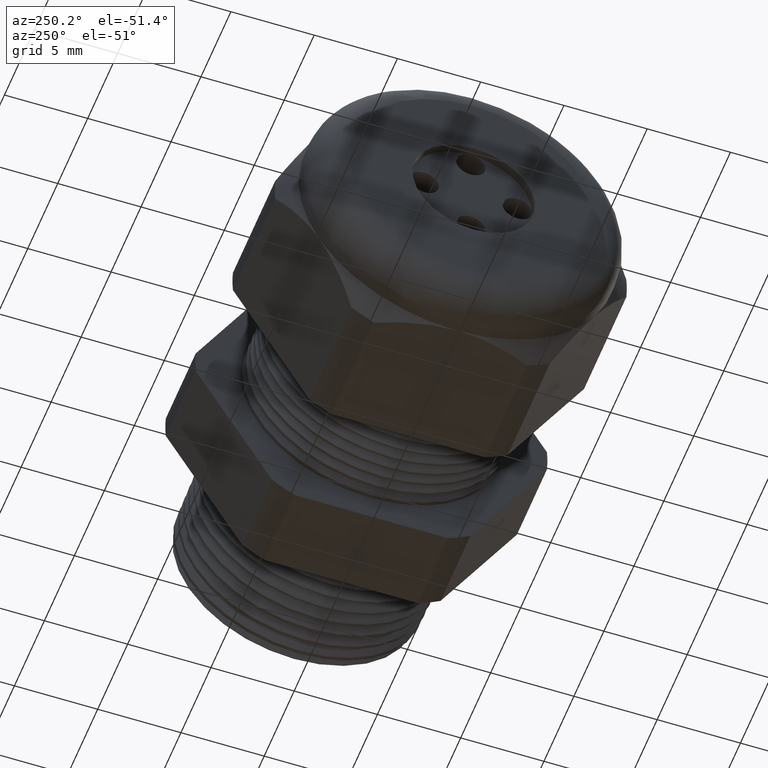
[diagram: clean part render]
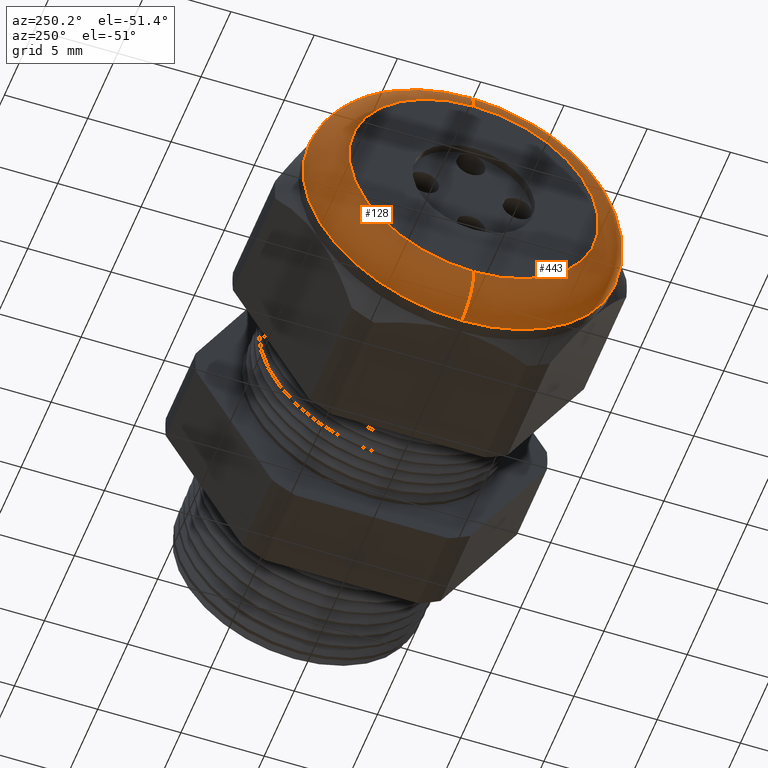
[diagram: same view with one multi-face feature highlighted, each face labeled with its STEP entity id]
A machine part, auxiliary view. The highlighted faces form ONE feature: a constant-radius fillet chain: 2 tangent blend faces with common blend radius 2.032 mm. The faces share edges in the B-rep.
Their STEP definitions:
[1] entity #128 (Torus):
#128 = ADVANCED_FACE ( 'NONE', ( #1545 ), #1543, .T. ) ;
#129 = EDGE_LOOP ( 'NONE', ( #130, #134, #137, #195 ) ) ;
#130 = ORIENTED_EDGE ( 'NONE', *, *, #131, .F. ) ;
#131 = EDGE_CURVE ( 'NONE', #132, #133, #1539, .T. ) ;
#132 = VERTEX_POINT ( 'NONE', #1534 ) ;
#133 = VERTEX_POINT ( 'NONE', #1533 ) ;
#134 = ORIENTED_EDGE ( 'NONE', *, *, #135, .T. ) ;
#135 = EDGE_CURVE ( 'NONE', #132, #136, #1532, .T. ) ;
#136 = VERTEX_POINT ( 'NONE', #1527 ) ;
#137 = ORIENTED_EDGE ( 'NONE', *, *, #138, .F. ) ;
#138 = EDGE_CURVE ( 'NONE', #139, #136, #1526, .T. ) ;
#139 = VERTEX_POINT ( 'NONE', #1521 ) ;
#195 = ORIENTED_EDGE ( 'NONE', *, *, #196, .F. ) ;
#196 = EDGE_CURVE ( 'NONE', #133, #139, #1660, .T. ) ;
#1521 = CARTESIAN_POINT ( 'NONE',  ( -1.179999999999999900, 0.0000000000000000000, 0.2950000000000001000 ) ) ;
#1522 = DIRECTION ( 'NONE',  ( 0.0000000000000000000, 0.0000000000000000000, 1.000000000000000000 ) ) ;
#1523 = DIRECTION ( 'NONE',  ( -1.000000000000000000, 0.0000000000000000000, 0.0000000000000000000 ) ) ;
#1524 = CARTESIAN_POINT ( 'NONE',  ( -1.179999999999999900, 0.0000000000000000000, 0.0000000000000000000 ) ) ;
#1525 = AXIS2_PLACEMENT_3D ( 'NONE', #1524, #1523, #1522 ) ;
#1526 = CIRCLE ( 'NONE', #1525, 0.2950000000000001000 ) ;
#1527 = CARTESIAN_POINT ( 'NONE',  ( -1.179999999999999900, 4.102566777143634000E-017, -0.2950000000000001000 ) ) ;
#1528 = DIRECTION ( 'NONE',  ( 0.0000000000000000000, -1.224646799147353500E-016, 1.000000000000000000 ) ) ;
#1529 = DIRECTION ( 'NONE',  ( 0.0000000000000000000, 1.000000000000000000, 1.224646799147353200E-016 ) ) ;
#1530 = CARTESIAN_POINT ( 'NONE',  ( -1.100000000000000100, 3.612708057484693200E-017, -0.2950000000000001000 ) ) ;
#1531 = AXIS2_PLACEMENT_3D ( 'NONE', #1530, #1529, #1528 ) ;
#1532 = CIRCLE ( 'NONE', #1531, 0.08000000000000000200 ) ;
#1533 = CARTESIAN_POINT ( 'NONE',  ( -1.100000000000000100, 4.592425496802576100E-017, 0.3750000000000001100 ) ) ;
#1534 = CARTESIAN_POINT ( 'NONE',  ( -1.100000000000000100, 0.0000000000000000000, -0.3750000000000001100 ) ) ;
#1535 = DIRECTION ( 'NONE',  ( 0.0000000000000000000, 0.0000000000000000000, 1.000000000000000000 ) ) ;
#1536 = DIRECTION ( 'NONE',  ( 1.000000000000000000, 0.0000000000000000000, 0.0000000000000000000 ) ) ;
#1537 = CARTESIAN_POINT ( 'NONE',  ( -1.100000000000000100, 0.0000000000000000000, 0.0000000000000000000 ) ) ;
#1538 = AXIS2_PLACEMENT_3D ( 'NONE', #1537, #1536, #1535 ) ;
#1539 = CIRCLE ( 'NONE', #1538, 0.3750000000000001100 ) ;
#1540 = DIRECTION ( 'NONE',  ( 0.0000000000000000000, 0.0000000000000000000, 1.000000000000000000 ) ) ;
#1541 = DIRECTION ( 'NONE',  ( -1.000000000000000000, 0.0000000000000000000, 0.0000000000000000000 ) ) ;
#1542 = AXIS2_PLACEMENT_3D ( 'NONE', #1544, #1541, #1540 ) ;
#1543 = TOROIDAL_SURFACE ( 'NONE', #1542, 0.2950000000000001000, 0.08000000000000000200 ) ;
#1544 = CARTESIAN_POINT ( 'NONE',  ( -1.100000000000000100, 0.0000000000000000000, 0.0000000000000000000 ) ) ;
#1545 = FACE_OUTER_BOUND ( 'NONE', #129, .T. ) ;
#1656 = DIRECTION ( 'NONE',  ( 0.0000000000000000000, 0.0000000000000000000, -1.000000000000000000 ) ) ;
#1657 = DIRECTION ( 'NONE',  ( 0.0000000000000000000, -1.000000000000000000, 0.0000000000000000000 ) ) ;
#1658 = CARTESIAN_POINT ( 'NONE',  ( -1.100000000000000100, 0.0000000000000000000, 0.2950000000000001000 ) ) ;
#1659 = AXIS2_PLACEMENT_3D ( 'NONE', #1658, #1657, #1656 ) ;
#1660 = CIRCLE ( 'NONE', #1659, 0.08000000000000000200 ) ;
[2] entity #443 (Torus):
#132 = VERTEX_POINT ( 'NONE', #1534 ) ;
#133 = VERTEX_POINT ( 'NONE', #1533 ) ;
#135 = EDGE_CURVE ( 'NONE', #132, #136, #1532, .T. ) ;
#136 = VERTEX_POINT ( 'NONE', #1527 ) ;
#139 = VERTEX_POINT ( 'NONE', #1521 ) ;
#196 = EDGE_CURVE ( 'NONE', #133, #139, #1660, .T. ) ;
#288 = EDGE_CURVE ( 'NONE', #136, #139, #1807, .T. ) ;
#296 = EDGE_CURVE ( 'NONE', #133, #132, #1861, .T. ) ;
#443 = ADVANCED_FACE ( 'NONE', ( #2063 ), #2062, .T. ) ;
#444 = EDGE_LOOP ( 'NONE', ( #445, #446, #447, #448 ) ) ;
#445 = ORIENTED_EDGE ( 'NONE', *, *, #135, .F. ) ;
#446 = ORIENTED_EDGE ( 'NONE', *, *, #296, .F. ) ;
#447 = ORIENTED_EDGE ( 'NONE', *, *, #196, .T. ) ;
#448 = ORIENTED_EDGE ( 'NONE', *, *, #288, .F. ) ;
#1521 = CARTESIAN_POINT ( 'NONE',  ( -1.179999999999999900, 0.0000000000000000000, 0.2950000000000001000 ) ) ;
#1527 = CARTESIAN_POINT ( 'NONE',  ( -1.179999999999999900, 4.102566777143634000E-017, -0.2950000000000001000 ) ) ;
#1528 = DIRECTION ( 'NONE',  ( 0.0000000000000000000, -1.224646799147353500E-016, 1.000000000000000000 ) ) ;
#1529 = DIRECTION ( 'NONE',  ( 0.0000000000000000000, 1.000000000000000000, 1.224646799147353200E-016 ) ) ;
#1530 = CARTESIAN_POINT ( 'NONE',  ( -1.100000000000000100, 3.612708057484693200E-017, -0.2950000000000001000 ) ) ;
#1531 = AXIS2_PLACEMENT_3D ( 'NONE', #1530, #1529, #1528 ) ;
#1532 = CIRCLE ( 'NONE', #1531, 0.08000000000000000200 ) ;
#1533 = CARTESIAN_POINT ( 'NONE',  ( -1.100000000000000100, 4.592425496802576100E-017, 0.3750000000000001100 ) ) ;
#1534 = CARTESIAN_POINT ( 'NONE',  ( -1.100000000000000100, 0.0000000000000000000, -0.3750000000000001100 ) ) ;
#1656 = DIRECTION ( 'NONE',  ( 0.0000000000000000000, 0.0000000000000000000, -1.000000000000000000 ) ) ;
#1657 = DIRECTION ( 'NONE',  ( 0.0000000000000000000, -1.000000000000000000, 0.0000000000000000000 ) ) ;
#1658 = CARTESIAN_POINT ( 'NONE',  ( -1.100000000000000100, 0.0000000000000000000, 0.2950000000000001000 ) ) ;
#1659 = AXIS2_PLACEMENT_3D ( 'NONE', #1658, #1657, #1656 ) ;
#1660 = CIRCLE ( 'NONE', #1659, 0.08000000000000000200 ) ;
#1803 = DIRECTION ( 'NONE',  ( 0.0000000000000000000, 0.0000000000000000000, 1.000000000000000000 ) ) ;
#1804 = DIRECTION ( 'NONE',  ( -1.000000000000000000, 0.0000000000000000000, 0.0000000000000000000 ) ) ;
#1805 = CARTESIAN_POINT ( 'NONE',  ( -1.179999999999999900, 0.0000000000000000000, 0.0000000000000000000 ) ) ;
#1806 = AXIS2_PLACEMENT_3D ( 'NONE', #1805, #1804, #1803 ) ;
#1807 = CIRCLE ( 'NONE', #1806, 0.2950000000000001000 ) ;
#1858 = DIRECTION ( 'NONE',  ( 0.0000000000000000000, 0.0000000000000000000, 1.000000000000000000 ) ) ;
#1859 = DIRECTION ( 'NONE',  ( 1.000000000000000000, 0.0000000000000000000, 0.0000000000000000000 ) ) ;
#1860 = AXIS2_PLACEMENT_3D ( 'NONE', #1866, #1859, #1858 ) ;
#1861 = CIRCLE ( 'NONE', #1860, 0.3750000000000001100 ) ;
#1866 = CARTESIAN_POINT ( 'NONE',  ( -1.100000000000000100, 0.0000000000000000000, 0.0000000000000000000 ) ) ;
#2059 = DIRECTION ( 'NONE',  ( 0.0000000000000000000, 0.0000000000000000000, 1.000000000000000000 ) ) ;
#2060 = DIRECTION ( 'NONE',  ( -1.000000000000000000, 0.0000000000000000000, 0.0000000000000000000 ) ) ;
#2061 = AXIS2_PLACEMENT_3D ( 'NONE', #2068, #2060, #2059 ) ;
#2062 = TOROIDAL_SURFACE ( 'NONE', #2061, 0.2950000000000001000, 0.08000000000000000200 ) ;
#2063 = FACE_OUTER_BOUND ( 'NONE', #444, .T. ) ;
#2068 = CARTESIAN_POINT ( 'NONE',  ( -1.100000000000000100, 0.0000000000000000000, 0.0000000000000000000 ) ) ;